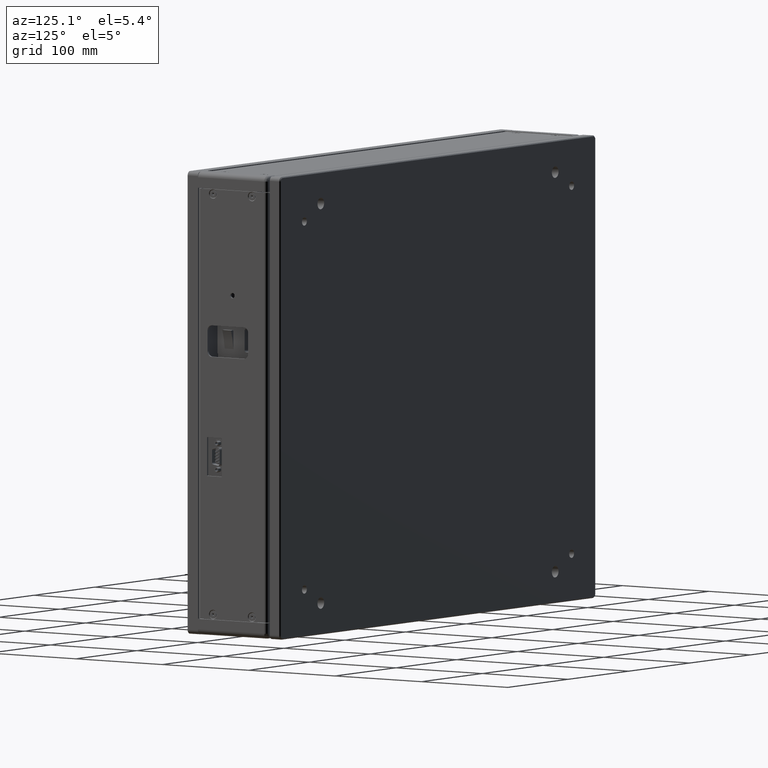
[diagram: clean part render]
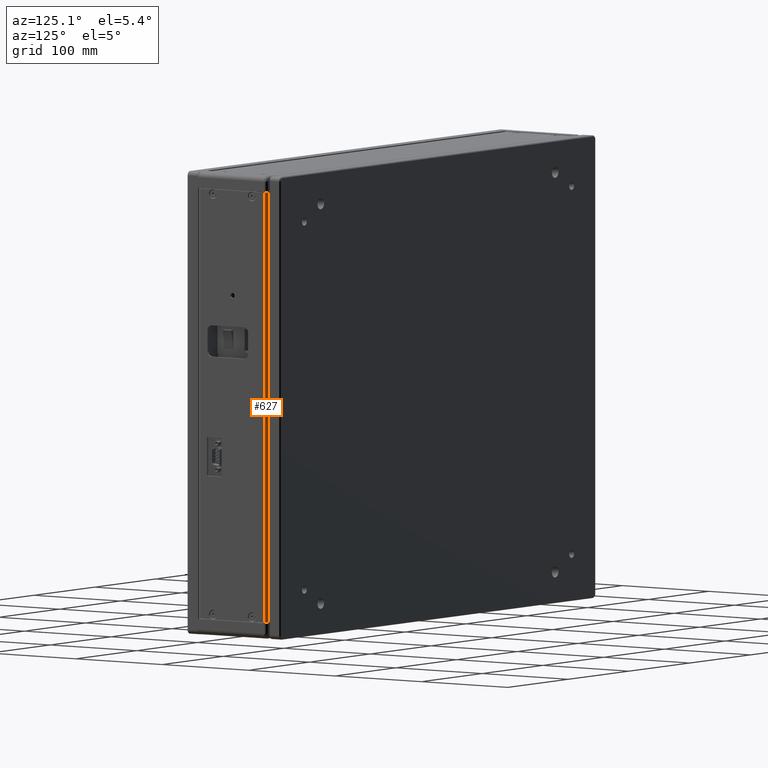
[diagram: same view with one face highlighted and labeled with its STEP entity id]
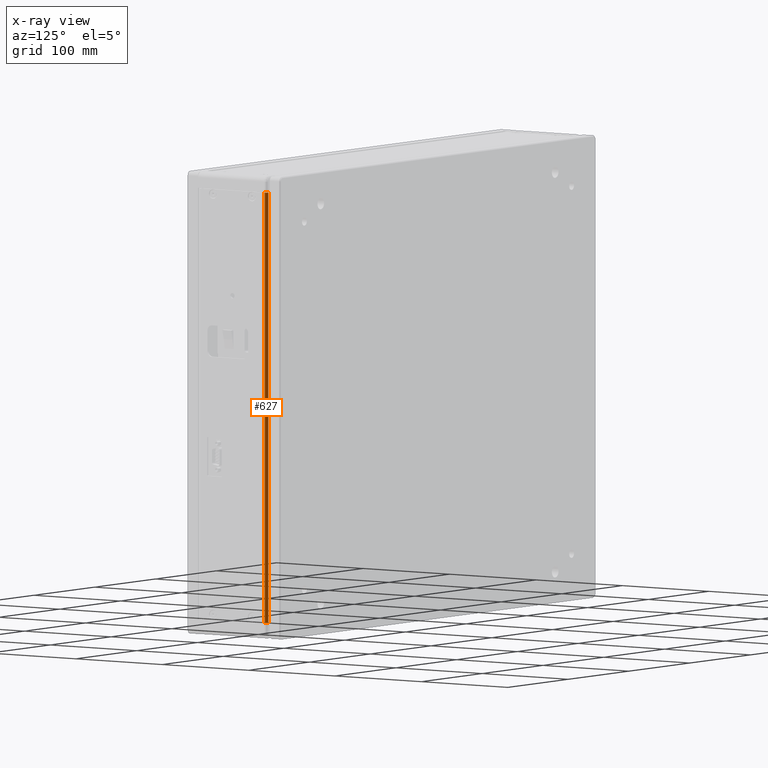
[diagram: x-ray of the same camera — body ghosted, the highlighted face saturated]
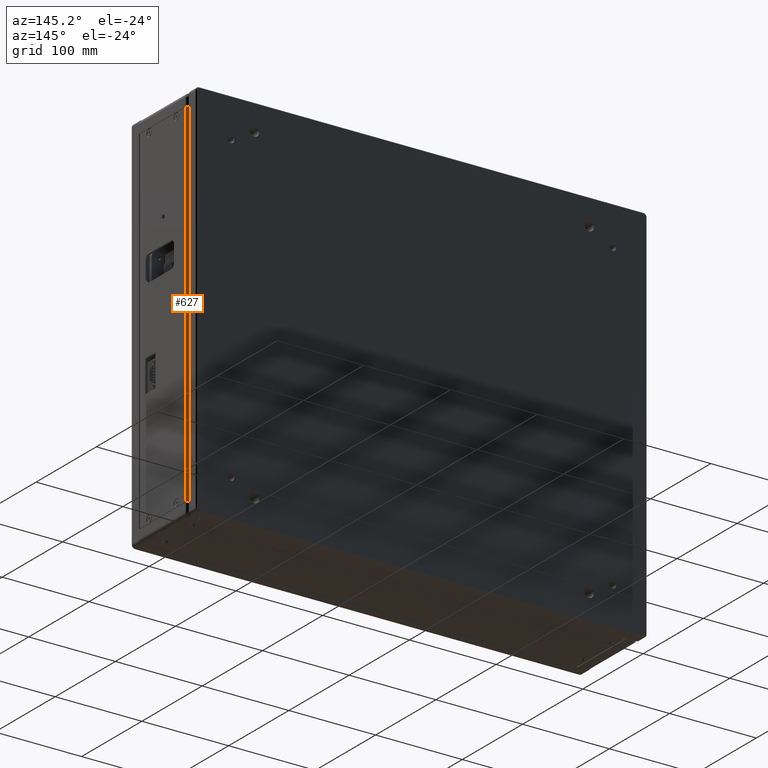
[diagram: same view with one face highlighted and labeled with its STEP entity id]
A machine part, auxiliary view. The second image highlights one B-rep face of the part: STEP entity #627.
The next image is the same camera in x-ray: the body ghosted, the highlighted face saturated — about 0% of this face is hidden behind the body in this view.
A second angle (auxiliary view) of the same face is appended — the face is thin or edge-on in the first view.
In plain terms, the highlighted cylindrical surface (edge-blend (fillet) strip) has radius 2.7366 mm, axis along (0, -0, -1).
Its self-contained STEP definition (entity closure, byte-faithful):
#627 = ADVANCED_FACE ( 'NONE', ( #4084 ), #31445, .T. ) ;
#1538 = EDGE_CURVE ( 'NONE', #24367, #16258, #10148, .T. ) ;
#3219 = DIRECTION ( 'NONE',  ( -6.938893903907114363E-18, 3.147286282264711056E-17, 1.000000000000000000 ) ) ;
#3693 = DIRECTION ( 'NONE',  ( 6.938893903907114363E-18, -3.147286282264711056E-17, -1.000000000000000000 ) ) ;
#3940 = CARTESIAN_POINT ( 'NONE',  ( 221.7146755979888439, 94.90058110050556195, 719.5000000000002274 ) ) ;
#4084 = FACE_OUTER_BOUND ( 'NONE', #12985, .T. ) ;
#5937 = VERTEX_POINT ( 'NONE', #13592 ) ;
#6735 = DIRECTION ( 'NONE',  ( -6.938893903907114363E-18, 3.147286282264711056E-17, 1.000000000000000000 ) ) ;
#6740 = ORIENTED_EDGE ( 'NONE', *, *, #1538, .F. ) ;
#7257 = CARTESIAN_POINT ( 'NONE',  ( 224.4512755979888539, 94.90058110050553353, 310.5000000000002274 ) ) ;
#8814 = LINE ( 'NONE', #17906, #9042 ) ;
#9042 = VECTOR ( 'NONE', #32605, 1000.000000000000000 ) ;
#9338 = EDGE_CURVE ( 'NONE', #24367, #29284, #36634, .T. ) ;
#10148 = LINE ( 'NONE', #19260, #35389 ) ;
#12985 = EDGE_LOOP ( 'NONE', ( #22407, #30421, #6740, #36750 ) ) ;
#13208 = DIRECTION ( 'NONE',  ( 1.000000000000000000, -5.071178764822929840E-15, 0.000000000000000000 ) ) ;
#13265 = DIRECTION ( 'NONE',  ( 1.000000000000000000, 0.000000000000000000, 0.000000000000000000 ) ) ;
#13592 = CARTESIAN_POINT ( 'NONE',  ( 221.7146755979888439, 97.63718110050557186, 719.5000000000002274 ) ) ;
#15791 = CARTESIAN_POINT ( 'NONE',  ( 224.4512755979888539, 94.90058110050554774, 719.5000000000002274 ) ) ;
#16258 = VERTEX_POINT ( 'NONE', #15791 ) ;
#16986 = DIRECTION ( 'NONE',  ( 1.000000000000000000, 0.000000000000000000, 0.000000000000000000 ) ) ;
#17906 = CARTESIAN_POINT ( 'NONE',  ( 221.7146755979888724, 97.63718110050555765, 310.5000000000002274 ) ) ;
#19260 = CARTESIAN_POINT ( 'NONE',  ( 224.4512755979888539, 94.90058110050553353, 310.5000000000002274 ) ) ;
#22407 = ORIENTED_EDGE ( 'NONE', *, *, #39074, .T. ) ;
#23141 = CARTESIAN_POINT ( 'NONE',  ( 221.7146755979888439, 94.90058110050554774, 310.5000000000002274 ) ) ;
#23377 = AXIS2_PLACEMENT_3D ( 'NONE', #3940, #6735, #13265 ) ;
#24367 = VERTEX_POINT ( 'NONE', #7257 ) ;
#28269 = CARTESIAN_POINT ( 'NONE',  ( 221.7146755979888439, 94.90058110050554774, 310.5000000000002274 ) ) ;
#29284 = VERTEX_POINT ( 'NONE', #32400 ) ;
#29920 = EDGE_CURVE ( 'NONE', #16258, #5937, #34119, .T. ) ;
#30421 = ORIENTED_EDGE ( 'NONE', *, *, #29920, .F. ) ;
#31445 = CYLINDRICAL_SURFACE ( 'NONE', #36367, 2.736600000000005473 ) ;
#32400 = CARTESIAN_POINT ( 'NONE',  ( 221.7146755979888439, 97.63718110050555765, 310.5000000000002274 ) ) ;
#32605 = DIRECTION ( 'NONE',  ( -6.938893903907114363E-18, 3.147286282264711056E-17, 1.000000000000000000 ) ) ;
#32649 = DIRECTION ( 'NONE',  ( -6.938893903907114363E-18, 3.147286282264711056E-17, 1.000000000000000000 ) ) ;
#34115 = AXIS2_PLACEMENT_3D ( 'NONE', #23141, #32649, #16986 ) ;
#34119 = CIRCLE ( 'NONE', #23377, 2.736600000000005473 ) ;
#35389 = VECTOR ( 'NONE', #3219, 1000.000000000000000 ) ;
#36367 = AXIS2_PLACEMENT_3D ( 'NONE', #28269, #3693, #13208 ) ;
#36634 = CIRCLE ( 'NONE', #34115, 2.736600000000005473 ) ;
#36750 = ORIENTED_EDGE ( 'NONE', *, *, #9338, .T. ) ;
#39074 = EDGE_CURVE ( 'NONE', #29284, #5937, #8814, .T. ) ;